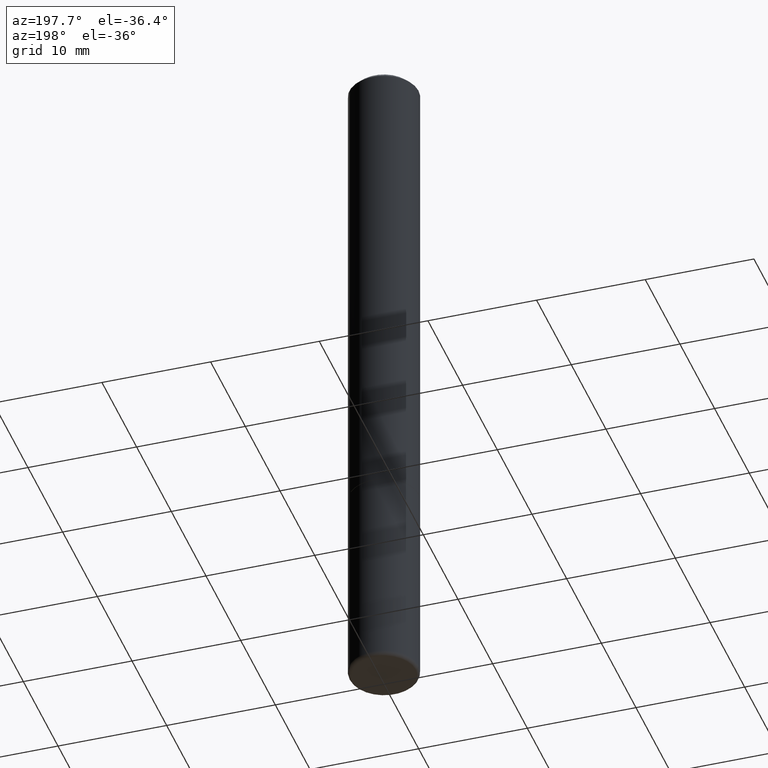
[diagram: clean part render]
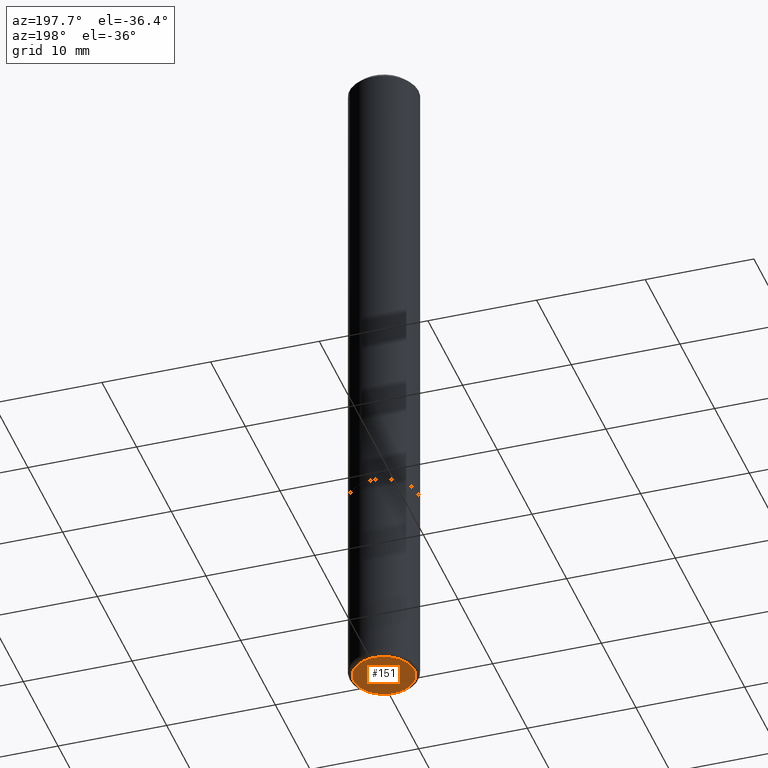
[diagram: same view with one face highlighted and labeled with its STEP entity id]
A machine part, auxiliary view. The second image highlights one B-rep face of the part: STEP entity #151.
In plain terms, the highlighted planar face has unit normal (0, -0, -1).
Its self-contained STEP definition (entity closure, byte-faithful):
#6 = FACE_OUTER_BOUND ( 'NONE', #62, .T. ) ;
#12 = AXIS2_PLACEMENT_3D ( 'NONE', #194, #35, #13 ) ;
#13 = DIRECTION ( 'NONE',  ( 1.000000000000000000, -6.982962677686270655E-15, 0.000000000000000000 ) ) ;
#35 = DIRECTION ( 'NONE',  ( -2.445468806185136597E-29, 3.491481338843145583E-15, 1.000000000000000000 ) ) ;
#62 = EDGE_LOOP ( 'NONE', ( #347, #232 ) ) ;
#87 = EDGE_CURVE ( 'NONE', #377, #210, #134, .T. ) ;
#97 = DIRECTION ( 'NONE',  ( -1.000000000000000000, 6.982962677686265922E-15, -4.876176775795935793E-29 ) ) ;
#122 = DIRECTION ( 'NONE',  ( 2.438088387897960049E-29, -3.491481338843145188E-15, -1.000000000000000000 ) ) ;
#134 = CIRCLE ( 'NONE', #263, 0.1100000000000000006 ) ;
#151 = ADVANCED_FACE ( 'NONE', ( #6 ), #162, .T. ) ;
#162 = PLANE ( 'NONE',  #245 ) ;
#178 = EDGE_CURVE ( 'NONE', #210, #377, #256, .T. ) ;
#187 = CARTESIAN_POINT ( 'NONE',  ( -0.1100000000000000006, -7.867629522548422746E-15, -2.500000000000000000 ) ) ;
#189 = DIRECTION ( 'NONE',  ( -2.445468806185136597E-29, 3.491481338843145583E-15, 1.000000000000000000 ) ) ;
#194 = CARTESIAN_POINT ( 'NONE',  ( 6.113672015462842613E-29, -8.728703347107864943E-15, -2.500000000000000000 ) ) ;
#210 = VERTEX_POINT ( 'NONE', #187 ) ;
#218 = CARTESIAN_POINT ( 'NONE',  ( 6.113672015462842613E-29, -8.728703347107864943E-15, -2.500000000000000000 ) ) ;
#224 = DIRECTION ( 'NONE',  ( 1.000000000000000000, -6.982962677686270655E-15, 0.000000000000000000 ) ) ;
#232 = ORIENTED_EDGE ( 'NONE', *, *, #178, .F. ) ;
#245 = AXIS2_PLACEMENT_3D ( 'NONE', #218, #122, #97 ) ;
#256 = CIRCLE ( 'NONE', #12, 0.1100000000000000006 ) ;
#263 = AXIS2_PLACEMENT_3D ( 'NONE', #395, #189, #224 ) ;
#299 = CARTESIAN_POINT ( 'NONE',  ( 0.1100000000000000006, -9.496829241653354912E-15, -2.500000000000000000 ) ) ;
#347 = ORIENTED_EDGE ( 'NONE', *, *, #87, .F. ) ;
#377 = VERTEX_POINT ( 'NONE', #299 ) ;
#395 = CARTESIAN_POINT ( 'NONE',  ( 6.113672015462842613E-29, -8.728703347107864943E-15, -2.500000000000000000 ) ) ;